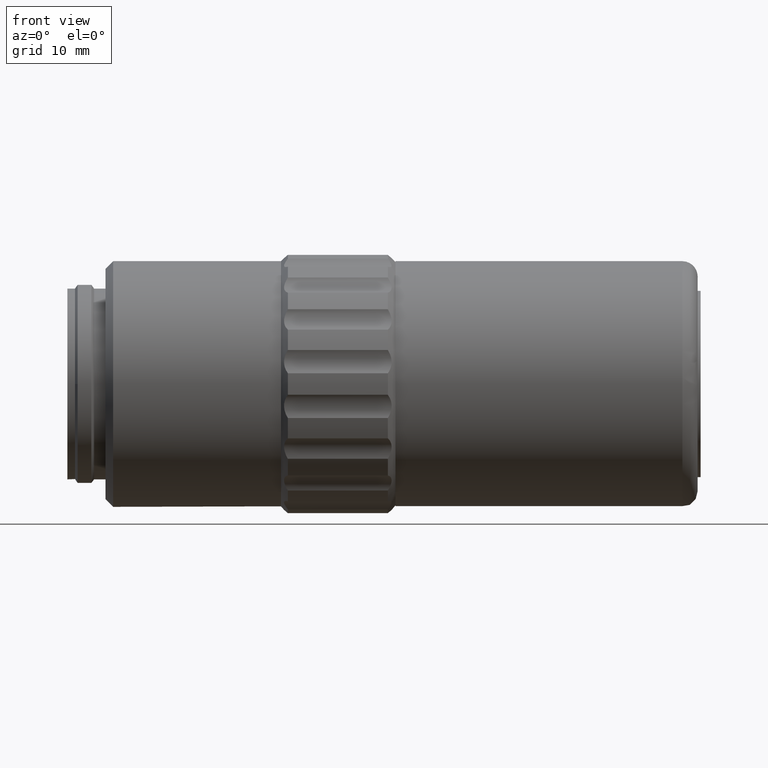
[diagram: clean part render]
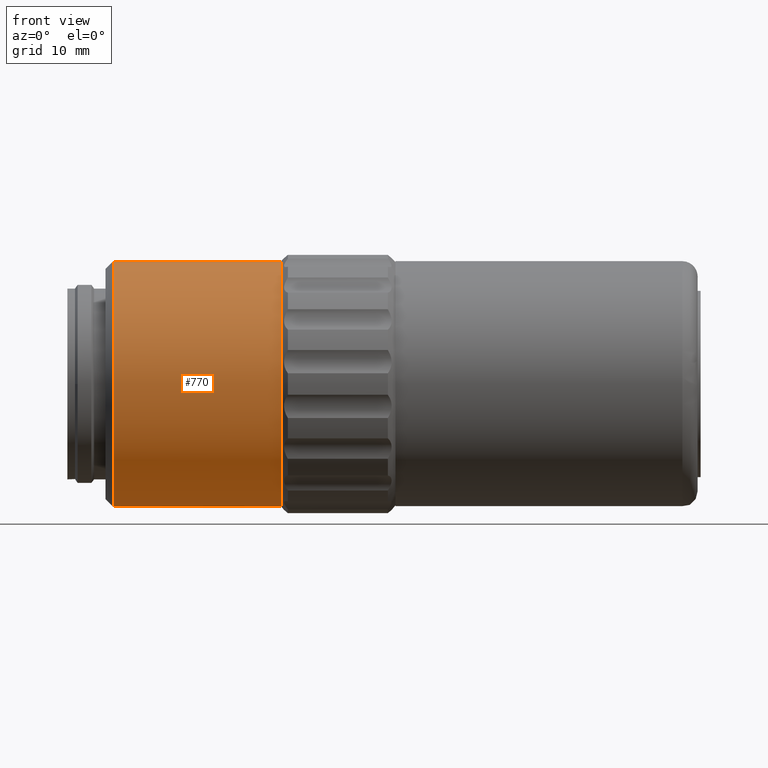
[diagram: same view with one face highlighted and labeled with its STEP entity id]
A machine part, front view. The second image highlights one B-rep face of the part: STEP entity #770.
In plain terms, the highlighted cylindrical surface (bore or boss wall) has radius 16.1 mm, axis along (-1, 0, 0).
Its self-contained STEP definition (entity closure, byte-faithful):
#8 = EDGE_LOOP ( 'NONE', ( #1524 ) ) ;
#89 = DIRECTION ( 'NONE',  ( 1.000000000000000000, 0.000000000000000000, 0.000000000000000000 ) ) ;
#108 = AXIS2_PLACEMENT_3D ( 'NONE', #1862, #1194, #2067 ) ;
#115 = DIRECTION ( 'NONE',  ( 0.000000000000000000, 0.000000000000000000, 1.000000000000000000 ) ) ;
#131 = CYLINDRICAL_SURFACE ( 'NONE', #108, 16.10000000000000142 ) ;
#145 = CIRCLE ( 'NONE', #653, 16.10000000000000142 ) ;
#234 = AXIS2_PLACEMENT_3D ( 'NONE', #506, #1909, #115 ) ;
#481 = CARTESIAN_POINT ( 'NONE',  ( 35.33704000000000178, 29.92096199999999584, 0.000000000000000000 ) ) ;
#506 = CARTESIAN_POINT ( 'NONE',  ( 13.33704000000000001, 46.02096199999999726, 0.000000000000000000 ) ) ;
#642 = EDGE_CURVE ( 'NONE', #1846, #1846, #145, .T. ) ;
#644 = FACE_OUTER_BOUND ( 'NONE', #8, .T. ) ;
#653 = AXIS2_PLACEMENT_3D ( 'NONE', #2212, #89, #1303 ) ;
#770 = ADVANCED_FACE ( 'NONE', ( #1178, #644 ), #131, .T. ) ;
#1057 = EDGE_LOOP ( 'NONE', ( #1145 ) ) ;
#1145 = ORIENTED_EDGE ( 'NONE', *, *, #1310, .T. ) ;
#1178 = FACE_OUTER_BOUND ( 'NONE', #1057, .T. ) ;
#1194 = DIRECTION ( 'NONE',  ( -1.000000000000000000, 0.000000000000000000, 0.000000000000000000 ) ) ;
#1225 = CIRCLE ( 'NONE', #234, 16.10000000000000142 ) ;
#1303 = DIRECTION ( 'NONE',  ( 0.000000000000000000, -1.000000000000000000, 0.000000000000000000 ) ) ;
#1310 = EDGE_CURVE ( 'NONE', #2018, #2018, #1225, .T. ) ;
#1524 = ORIENTED_EDGE ( 'NONE', *, *, #642, .F. ) ;
#1846 = VERTEX_POINT ( 'NONE', #481 ) ;
#1862 = CARTESIAN_POINT ( 'NONE',  ( 23.83704000000000178, 46.02096199999999726, 0.000000000000000000 ) ) ;
#1909 = DIRECTION ( 'NONE',  ( 1.000000000000000000, -0.000000000000000000, -0.000000000000000000 ) ) ;
#2018 = VERTEX_POINT ( 'NONE', #2029 ) ;
#2029 = CARTESIAN_POINT ( 'NONE',  ( 13.33704000000000001, 46.02096199999999726, 16.10000000000000142 ) ) ;
#2067 = DIRECTION ( 'NONE',  ( 0.000000000000000000, 0.000000000000000000, 1.000000000000000000 ) ) ;
#2212 = CARTESIAN_POINT ( 'NONE',  ( 35.33704000000000178, 46.02096199999999726, 0.000000000000000000 ) ) ;